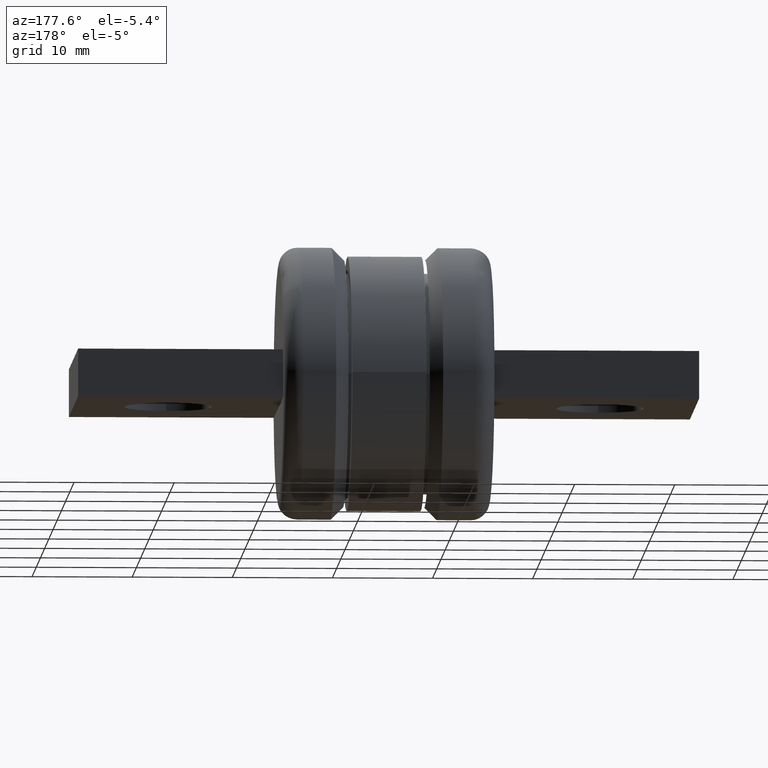
[diagram: clean part render]
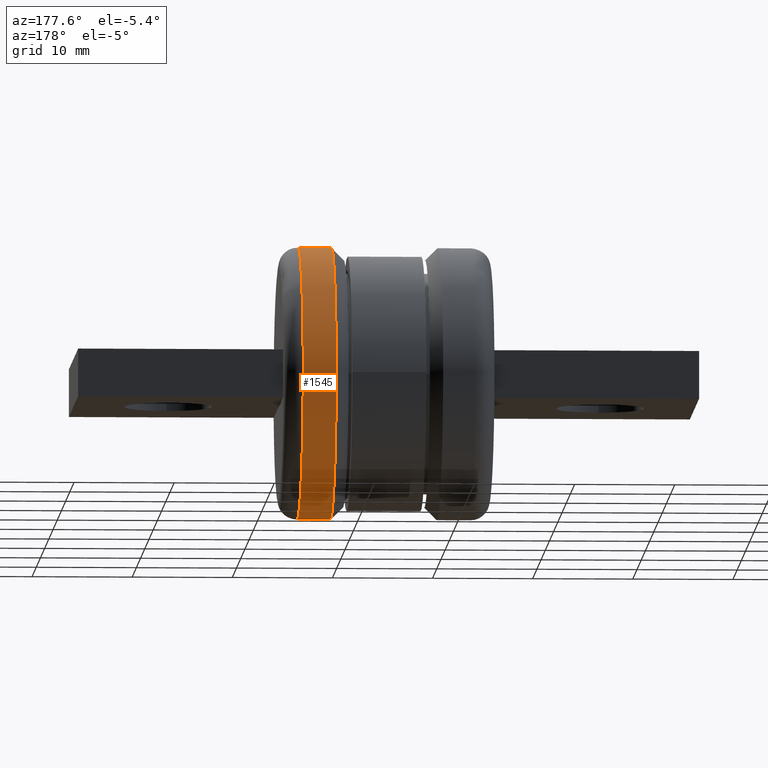
[diagram: same view with one face highlighted and labeled with its STEP entity id]
A machine part, auxiliary view. The second image highlights one B-rep face of the part: STEP entity #1545.
In plain terms, the highlighted cylindrical surface (partial cylindrical patch) has radius 13.6271 mm, axis along (-1, -0, 0).
Its self-contained STEP definition (entity closure, byte-faithful):
#16 = CARTESIAN_POINT ( 'NONE',  ( 0.6132856678774598600, -3.782444770803346600E-017, 0.5364999999999999800 ) ) ;
#20 = VECTOR ( 'NONE', #942, 39.37007874015748100 ) ;
#52 = CARTESIAN_POINT ( 'NONE',  ( 0.6132856678774598600, -3.168561220491757200E-017, 5.106276096362055600E-018 ) ) ;
#80 = VERTEX_POINT ( 'NONE', #16 ) ;
#83 = ORIENTED_EDGE ( 'NONE', *, *, #598, .T. ) ;
#84 = CIRCLE ( 'NONE', #687, 0.5364999999999999800 ) ;
#134 = LINE ( 'NONE', #1519, #440 ) ;
#167 = VERTEX_POINT ( 'NONE', #229 ) ;
#181 = FACE_OUTER_BOUND ( 'NONE', #356, .T. ) ;
#201 = CIRCLE ( 'NONE', #1658, 0.5364999999999999800 ) ;
#229 = CARTESIAN_POINT ( 'NONE',  ( 0.6132856678774598600, -9.124907747605719400E-017, -0.5364999999999999800 ) ) ;
#232 = CARTESIAN_POINT ( 'NONE',  ( 0.6882856678774597100, -2.405099157240122500E-017, 3.791200677927629700E-033 ) ) ;
#283 = DIRECTION ( 'NONE',  ( 1.000000000000000000, 1.017949417668852000E-016, -6.808368128482743700E-017 ) ) ;
#287 = CARTESIAN_POINT ( 'NONE',  ( 0.6882856678774597100, -8.361445684354084600E-017, -0.5364999999999999800 ) ) ;
#310 = VERTEX_POINT ( 'NONE', #1138 ) ;
#323 = LINE ( 'NONE', #287, #20 ) ;
#356 = EDGE_LOOP ( 'NONE', ( #1172, #83, #1542, #1188 ) ) ;
#362 = EDGE_CURVE ( 'NONE', #80, #310, #134, .T. ) ;
#377 = VERTEX_POINT ( 'NONE', #1402 ) ;
#410 = EDGE_CURVE ( 'NONE', #377, #310, #84, .T. ) ;
#440 = VECTOR ( 'NONE', #1110, 39.37007874015748100 ) ;
#519 = DIRECTION ( 'NONE',  ( -1.272995337215406900E-016, -1.110223024625155800E-016, -1.000000000000000000 ) ) ;
#598 = EDGE_CURVE ( 'NONE', #80, #167, #201, .T. ) ;
#656 = EDGE_CURVE ( 'NONE', #167, #377, #323, .T. ) ;
#687 = AXIS2_PLACEMENT_3D ( 'NONE', #765, #283, #519 ) ;
#765 = CARTESIAN_POINT ( 'NONE',  ( 0.4832856678774605200, -4.491895463461261600E-017, 1.395715466338958500E-017 ) ) ;
#843 = DIRECTION ( 'NONE',  ( -1.000000000000000000, -1.017949417668852000E-016, 6.808368128482743700E-017 ) ) ;
#942 = DIRECTION ( 'NONE',  ( -1.000000000000000000, -1.017949417668852000E-016, 6.808368128482743700E-017 ) ) ;
#973 = AXIS2_PLACEMENT_3D ( 'NONE', #232, #1107, #1609 ) ;
#1107 = DIRECTION ( 'NONE',  ( -1.000000000000000000, -1.017949417668852000E-016, 6.808368128482743700E-017 ) ) ;
#1110 = DIRECTION ( 'NONE',  ( -1.000000000000000000, -1.017949417668852000E-016, 6.808368128482743700E-017 ) ) ;
#1138 = CARTESIAN_POINT ( 'NONE',  ( 0.4832856678774605800, -4.444111892288098400E-017, 0.5364999999999999800 ) ) ;
#1172 = ORIENTED_EDGE ( 'NONE', *, *, #362, .F. ) ;
#1188 = ORIENTED_EDGE ( 'NONE', *, *, #410, .T. ) ;
#1349 = CYLINDRICAL_SURFACE ( 'NONE', #973, 0.5364999999999999800 ) ;
#1402 = CARTESIAN_POINT ( 'NONE',  ( 0.4832856678774604700, -1.044824199057522300E-016, -0.5364999999999999800 ) ) ;
#1519 = CARTESIAN_POINT ( 'NONE',  ( 0.6882856678774597100, -3.018982707551710000E-017, 0.5364999999999999800 ) ) ;
#1542 = ORIENTED_EDGE ( 'NONE', *, *, #656, .T. ) ;
#1545 = ADVANCED_FACE ( 'NONE', ( #181 ), #1349, .T. ) ;
#1609 = DIRECTION ( 'NONE',  ( 0.0000000000000000000, -1.110223024625156000E-016, -1.000000000000000000 ) ) ;
#1610 = DIRECTION ( 'NONE',  ( -1.272995337215406900E-016, -1.110223024625156000E-016, -1.000000000000000000 ) ) ;
#1658 = AXIS2_PLACEMENT_3D ( 'NONE', #52, #843, #1610 ) ;